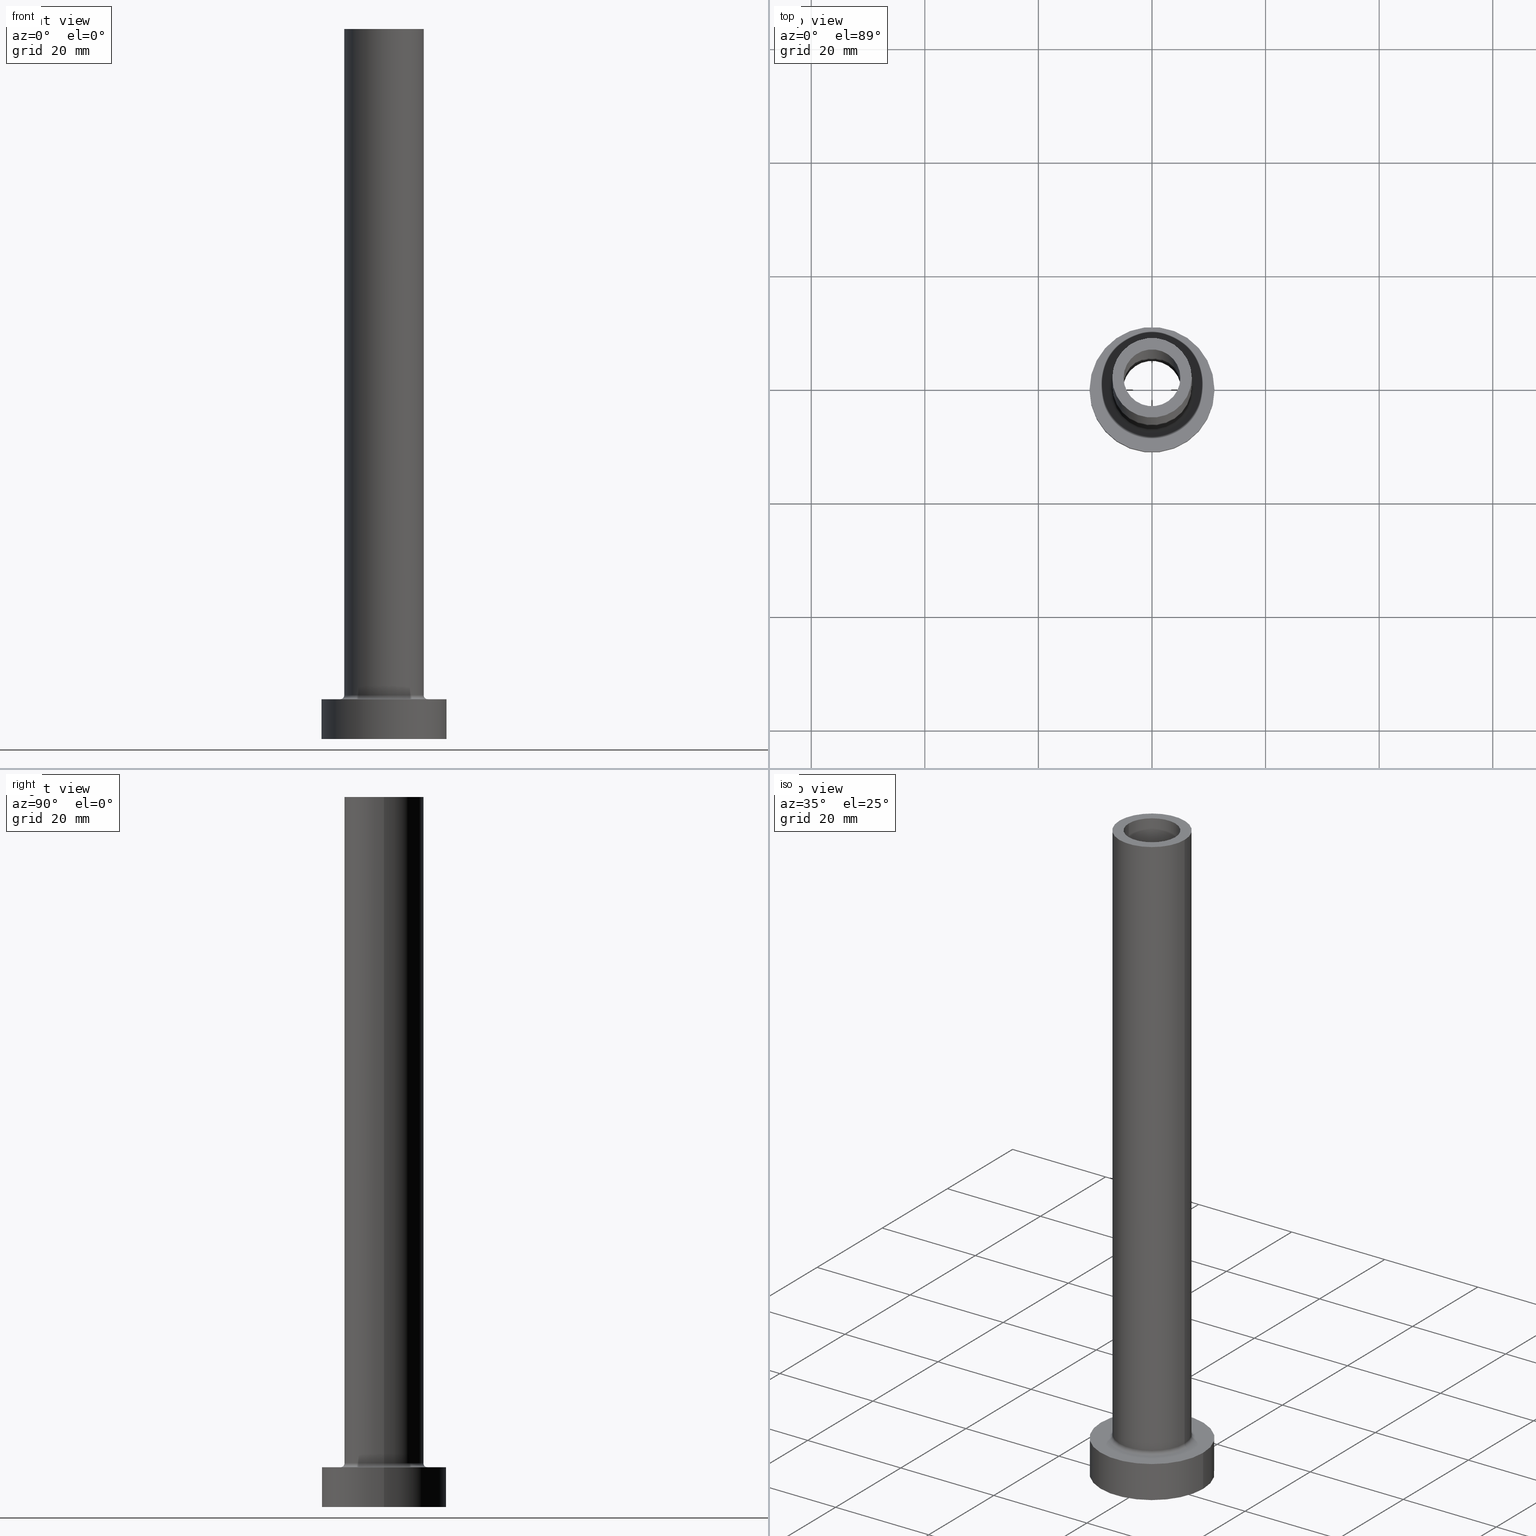
[diagram: canonical four-view strip — front | top / right | iso, engineering-drawing reading convention]
A machine part, canonical four-view strip (front | top / right | iso — engineering-drawing reading convention). The complete STEP part file that produces these views, byte-faithful:
ISO-10303-21;
HEADER;
FILE_DESCRIPTION (( 'STEP AP203' ),
    '1' );
FILE_NAME ('a6f4.STEP',
    '2023-02-13T07:44:35',
    ( '' ),
    ( '' ),
    'SwSTEP 2.0',
    'SolidWorks 2019',
    '' );
FILE_SCHEMA (( 'CONFIG_CONTROL_DESIGN' ));
ENDSEC;

DATA;
#1 = EDGE_LOOP ( 'NONE', ( #440, #361, #69, #321 ) ) ;
#2 = CYLINDRICAL_SURFACE ( 'NONE', #157, 11.00000000000000000 ) ;
#3 = ORIENTED_EDGE ( 'NONE', *, *, #61, .T. ) ;
#4 = AXIS2_PLACEMENT_3D ( 'NONE', #166, #136, #243 ) ;
#5 = DIRECTION ( 'NONE',  ( -0.000000000000000000, -0.000000000000000000, -1.000000000000000000 ) ) ;
#6 = ORIENTED_EDGE ( 'NONE', *, *, #452, .T. ) ;
#7 = VERTEX_POINT ( 'NONE', #266 ) ;
#8 = FACE_OUTER_BOUND ( 'NONE', #249, .T. ) ;
#9 = EDGE_CURVE ( 'NONE', #386, #119, #46, .T. ) ;
#10 = AXIS2_PLACEMENT_3D ( 'NONE', #129, #20, #204 ) ;
#11 = AXIS2_PLACEMENT_3D ( 'NONE', #377, #21, #315 ) ;
#12 = DIRECTION ( 'NONE',  ( 0.000000000000000000, 0.000000000000000000, 1.000000000000000000 ) ) ;
#13 = APPLICATION_CONTEXT ( 'configuration controlled 3d designs of mechanical parts and assemblies' ) ;
#14 = ORIENTED_EDGE ( 'NONE', *, *, #53, .F. ) ;
#15 = VECTOR ( 'NONE', #139, 1000.000000000000000 ) ;
#16 = ORIENTED_EDGE ( 'NONE', *, *, #308, .F. ) ;
#17 = DIRECTION ( 'NONE',  ( 1.000000000000000000, 0.000000000000000000, -0.000000000000000000 ) ) ;
#18 = ORIENTED_EDGE ( 'NONE', *, *, #325, .F. ) ;
#19 = SHAPE_DEFINITION_REPRESENTATION ( #90, #424 ) ;
#20 = DIRECTION ( 'NONE',  ( 0.000000000000000000, 0.000000000000000000, 1.000000000000000000 ) ) ;
#21 = DIRECTION ( 'NONE',  ( 0.000000000000000000, 0.000000000000000000, -1.000000000000000000 ) ) ;
#22 = LOCAL_TIME ( 8, 44, 35.00000000000000000, #268 ) ;
#23 = DATE_TIME_ROLE ( 'classification_date' ) ;
#24 = ADVANCED_FACE ( 'NONE', ( #410 ), #59, .F. ) ;
#25 = CARTESIAN_POINT ( 'NONE',  ( 11.00000000000000000, 1.347111479062088405E-15, 7.000000000000000000 ) ) ;
#26 = DATE_AND_TIME ( #234, #83 ) ;
#27 = CARTESIAN_POINT ( 'NONE',  ( 11.00000000000000000, 1.347111479062088405E-15, 0.000000000000000000 ) ) ;
#28 = CIRCLE ( 'NONE', #233, 5.150000000000001243 ) ;
#29 = CC_DESIGN_APPROVAL ( #169, ( #299 ) ) ;
#30 = CARTESIAN_POINT ( 'NONE',  ( 0.000000000000000000, 0.000000000000000000, 7.000000000000000000 ) ) ;
#31 = DIRECTION ( 'NONE',  ( 1.000000000000000000, 0.000000000000000000, 0.000000000000000000 ) ) ;
#32 = LOCAL_TIME ( 8, 44, 35.00000000000000000, #345 ) ;
#33 = DIRECTION ( 'NONE',  ( -0.000000000000000000, -0.000000000000000000, -1.000000000000000000 ) ) ;
#34 = FACE_OUTER_BOUND ( 'NONE', #199, .T. ) ;
#35 = AXIS2_PLACEMENT_3D ( 'NONE', #427, #436, #84 ) ;
#36 = AXIS2_PLACEMENT_3D ( 'NONE', #461, #458, #281 ) ;
#37 = PLANE ( 'NONE',  #331 ) ;
#38 = ORIENTED_EDGE ( 'NONE', *, *, #273, .F. ) ;
#39 = CC_DESIGN_PERSON_AND_ORGANIZATION_ASSIGNMENT ( #264, #62, ( #205 ) ) ;
#40 = DIRECTION ( 'NONE',  ( -1.000000000000000000, 0.000000000000000000, 0.000000000000000000 ) ) ;
#41 = ORIENTED_EDGE ( 'NONE', *, *, #452, .F. ) ;
#42 = DIRECTION ( 'NONE',  ( -1.000000000000000000, 0.000000000000000000, 0.000000000000000000 ) ) ;
#43 = EDGE_LOOP ( 'NONE', ( #433, #113, #143, #196 ) ) ;
#44 = CIRCLE ( 'NONE', #97, 11.00000000000000000 ) ;
#45 = CARTESIAN_POINT ( 'NONE',  ( 0.000000000000000000, 0.000000000000000000, 7.699999999999998401 ) ) ;
#46 = CIRCLE ( 'NONE', #194, 5.150000000000001243 ) ;
#47 = PERSON_AND_ORGANIZATION_ROLE ( 'design_owner' ) ;
#48 = DIRECTION ( 'NONE',  ( -0.000000000000000000, -0.000000000000000000, -1.000000000000000000 ) ) ;
#49 = ORIENTED_EDGE ( 'NONE', *, *, #366, .T. ) ;
#50 =( GEOMETRIC_REPRESENTATION_CONTEXT ( 3 ) GLOBAL_UNCERTAINTY_ASSIGNED_CONTEXT ( ( #100 ) ) GLOBAL_UNIT_ASSIGNED_CONTEXT ( ( #160, #333, #263 ) ) REPRESENTATION_CONTEXT ( 'NONE', 'WORKASPACE' ) );
#51 = DIRECTION ( 'NONE',  ( 1.000000000000000000, 0.000000000000000000, 0.000000000000000000 ) ) ;
#52 = CARTESIAN_POINT ( 'NONE',  ( 0.000000000000000000, 0.000000000000000000, 0.000000000000000000 ) ) ;
#53 = EDGE_CURVE ( 'NONE', #311, #217, #159, .T. ) ;
#54 = EDGE_LOOP ( 'NONE', ( #127, #398 ) ) ;
#55 = DIRECTION ( 'NONE',  ( 0.000000000000000000, 0.000000000000000000, -1.000000000000000000 ) ) ;
#56 = VERTEX_POINT ( 'NONE', #456 ) ;
#57 = APPROVAL_ROLE ( '' ) ;
#58 = ORIENTED_EDGE ( 'NONE', *, *, #389, .T. ) ;
#59 = CYLINDRICAL_SURFACE ( 'NONE', #11, 5.150000000000001243 ) ;
#60 = DATE_AND_TIME ( #372, #161 ) ;
#61 = EDGE_CURVE ( 'NONE', #352, #386, #347, .T. ) ;
#62 = PERSON_AND_ORGANIZATION_ROLE ( 'design_supplier' ) ;
#63 = CARTESIAN_POINT ( 'NONE',  ( 5.150000000000001243, 6.306931015608869596E-16, 94.56639969244288579 ) ) ;
#64 = DIRECTION ( 'NONE',  ( 0.000000000000000000, 0.000000000000000000, 1.000000000000000000 ) ) ;
#65 = CALENDAR_DATE ( 2023, 13, 2 ) ;
#66 = DIRECTION ( 'NONE',  ( 1.000000000000000000, 0.000000000000000000, 0.000000000000000000 ) ) ;
#67 = DIRECTION ( 'NONE',  ( 1.000000000000000000, 0.000000000000000000, 0.000000000000000000 ) ) ;
#68 = AXIS2_PLACEMENT_3D ( 'NONE', #376, #408, #302 ) ;
#69 = ORIENTED_EDGE ( 'NONE', *, *, #94, .F. ) ;
#70 = CIRCLE ( 'NONE', #223, 7.000000000000000888 ) ;
#71 = EDGE_CURVE ( 'NONE', #155, #230, #201, .T. ) ;
#72 = ORIENTED_EDGE ( 'NONE', *, *, #253, .T. ) ;
#73 = DIRECTION ( 'NONE',  ( 0.000000000000000000, 0.000000000000000000, 1.000000000000000000 ) ) ;
#74 = FACE_OUTER_BOUND ( 'NONE', #43, .T. ) ;
#75 = EDGE_CURVE ( 'NONE', #218, #81, #215, .T. ) ;
#76 = DIRECTION ( 'NONE',  ( 1.000000000000000000, 0.000000000000000000, -0.000000000000000000 ) ) ;
#77 = DIRECTION ( 'NONE',  ( 0.000000000000000000, 0.000000000000000000, 1.000000000000000000 ) ) ;
#78 = MECHANICAL_CONTEXT ( 'NONE', #13, 'mechanical' ) ;
#79 = CARTESIAN_POINT ( 'NONE',  ( -11.00000000000000000, 0.000000000000000000, 7.000000000000000000 ) ) ;
#80 = EDGE_CURVE ( 'NONE', #286, #359, #70, .T. ) ;
#81 = VERTEX_POINT ( 'NONE', #207 ) ;
#82 = DIRECTION ( 'NONE',  ( 1.000000000000000000, 0.000000000000000000, 0.000000000000000000 ) ) ;
#83 = LOCAL_TIME ( 8, 44, 35.00000000000000000, #346 ) ;
#84 = DIRECTION ( 'NONE',  ( 1.000000000000000000, 0.000000000000000000, -0.000000000000000000 ) ) ;
#85 = CARTESIAN_POINT ( 'NONE',  ( 0.000000000000000000, 0.000000000000000000, 7.000000000000000000 ) ) ;
#86 = AXIS2_PLACEMENT_3D ( 'NONE', #356, #145, #393 ) ;
#87 = CIRCLE ( 'NONE', #36, 5.150000000000001243 ) ;
#88 = PERSON_AND_ORGANIZATION ( #301, #313 ) ;
#89 = ORIENTED_EDGE ( 'NONE', *, *, #435, .T. ) ;
#90 = PRODUCT_DEFINITION_SHAPE ( 'NONE', 'NONE',  #299 ) ;
#91 = PLANE ( 'NONE',  #362 ) ;
#92 = PERSON_AND_ORGANIZATION_ROLE ( 'creator' ) ;
#93 = DIRECTION ( 'NONE',  ( 1.000000000000000000, 0.000000000000000000, 0.000000000000000000 ) ) ;
#94 = EDGE_CURVE ( 'NONE', #56, #407, #182, .T. ) ;
#95 = AXIS2_PLACEMENT_3D ( 'NONE', #85, #335, #439 ) ;
#96 = CALENDAR_DATE ( 2023, 13, 2 ) ;
#97 = AXIS2_PLACEMENT_3D ( 'NONE', #214, #73, #148 ) ;
#98 = ORIENTED_EDGE ( 'NONE', *, *, #334, .F. ) ;
#99 = LINE ( 'NONE', #403, #295 ) ;
#100 = UNCERTAINTY_MEASURE_WITH_UNIT (LENGTH_MEASURE( 1.000000000000000082E-05 ), #160, 'distance_accuracy_value', 'NONE');
#101 = APPROVAL_DATE_TIME ( #26, #257 ) ;
#102 = LINE ( 'NONE', #211, #186 ) ;
#103 = DIRECTION ( 'NONE',  ( 1.000000000000000000, 0.000000000000000000, 0.000000000000000000 ) ) ;
#104 = CARTESIAN_POINT ( 'NONE',  ( 5.000000000000000000, 6.123233995736765296E-16, 125.0000000000000000 ) ) ;
#105 = ORIENTED_EDGE ( 'NONE', *, *, #334, .T. ) ;
#106 = FACE_OUTER_BOUND ( 'NONE', #1, .T. ) ;
#107 = CIRCLE ( 'NONE', #68, 11.00000000000000000 ) ;
#108 = ORIENTED_EDGE ( 'NONE', *, *, #53, .T. ) ;
#109 = FACE_OUTER_BOUND ( 'NONE', #459, .T. ) ;
#110 = CARTESIAN_POINT ( 'NONE',  ( 0.000000000000000000, 0.000000000000000000, 80.00000000000000000 ) ) ;
#111 = CARTESIAN_POINT ( 'NONE',  ( 0.000000000000000000, 0.000000000000000000, 125.0000000000000000 ) ) ;
#112 = ADVANCED_FACE ( 'NONE', ( #174 ), #244, .F. ) ;
#113 = ORIENTED_EDGE ( 'NONE', *, *, #354, .F. ) ;
#114 = AXIS2_PLACEMENT_3D ( 'NONE', #360, #358, #423 ) ;
#115 = APPROVAL_PERSON_ORGANIZATION ( #239, #169, #57 ) ;
#116 = VECTOR ( 'NONE', #131, 1000.000000000000000 ) ;
#117 = DIRECTION ( 'NONE',  ( 0.000000000000000000, 0.000000000000000000, 1.000000000000000000 ) ) ;
#118 = EDGE_LOOP ( 'NONE', ( #421, #397, #49, #278 ) ) ;
#119 = VERTEX_POINT ( 'NONE', #404 ) ;
#120 = APPROVAL ( #378, 'NEUR�EN�' ) ;
#121 = CARTESIAN_POINT ( 'NONE',  ( 0.000000000000000000, 0.000000000000000000, 0.000000000000000000 ) ) ;
#122 = DIRECTION ( 'NONE',  ( 1.000000000000000000, 0.000000000000000000, 0.000000000000000000 ) ) ;
#123 = CARTESIAN_POINT ( 'NONE',  ( 0.000000000000000000, 0.000000000000000000, 7.699999999999998401 ) ) ;
#124 = EDGE_LOOP ( 'NONE', ( #98, #213, #221, #89 ) ) ;
#125 = EDGE_CURVE ( 'NONE', #7, #425, #402, .T. ) ;
#126 = PRODUCT ( 'a6f4', 'a6f4', '', ( #78 ) ) ;
#127 = ORIENTED_EDGE ( 'NONE', *, *, #94, .T. ) ;
#128 = AXIS2_PLACEMENT_3D ( 'NONE', #226, #438, #42 ) ;
#129 = CARTESIAN_POINT ( 'NONE',  ( 0.000000000000000000, 0.000000000000000000, 80.00000000000000000 ) ) ;
#130 = CLOSED_SHELL ( 'NONE', ( #430, #24, #112, #445, #220, #405, #190, #342, #185, #237, #261, #245, #399, #396 ) ) ;
#131 = DIRECTION ( 'NONE',  ( 0.000000000000000000, 0.000000000000000000, -1.000000000000000000 ) ) ;
#132 = AXIS2_PLACEMENT_3D ( 'NONE', #248, #380, #66 ) ;
#133 = EDGE_LOOP ( 'NONE', ( #168, #146, #324, #38 ) ) ;
#134 = SECURITY_CLASSIFICATION_LEVEL ( 'unclassified' ) ;
#135 = DATE_TIME_ROLE ( 'creation_date' ) ;
#136 = DIRECTION ( 'NONE',  ( 0.000000000000000000, 0.000000000000000000, 1.000000000000000000 ) ) ;
#137 = DATE_AND_TIME ( #96, #32 ) ;
#138 = CIRCLE ( 'NONE', #4, 5.000000000000000000 ) ;
#139 = DIRECTION ( 'NONE',  ( 0.000000000000000000, 0.000000000000000000, -1.000000000000000000 ) ) ;
#140 = CARTESIAN_POINT ( 'NONE',  ( -5.150000000000001243, 0.000000000000000000, 94.56639969244288579 ) ) ;
#141 = FACE_BOUND ( 'NONE', #383, .T. ) ;
#142 = DIRECTION ( 'NONE',  ( -0.000000000000000000, -0.000000000000000000, -1.000000000000000000 ) ) ;
#143 = ORIENTED_EDGE ( 'NONE', *, *, #75, .T. ) ;
#144 = CYLINDRICAL_SURFACE ( 'NONE', #336, 5.000000000000000000 ) ;
#145 = DIRECTION ( 'NONE',  ( 0.000000000000000000, 0.000000000000000000, 1.000000000000000000 ) ) ;
#146 = ORIENTED_EDGE ( 'NONE', *, *, #125, .T. ) ;
#147 = EDGE_CURVE ( 'NONE', #359, #286, #446, .T. ) ;
#148 = DIRECTION ( 'NONE',  ( 1.000000000000000000, 0.000000000000000000, 0.000000000000000000 ) ) ;
#149 = ORIENTED_EDGE ( 'NONE', *, *, #267, .F. ) ;
#150 = DIRECTION ( 'NONE',  ( 1.000000000000000000, 0.000000000000000000, 0.000000000000000000 ) ) ;
#151 = ORIENTED_EDGE ( 'NONE', *, *, #308, .T. ) ;
#152 = VECTOR ( 'NONE', #269, 1000.000000000000000 ) ;
#153 = DIRECTION ( 'NONE',  ( -1.000000000000000000, 0.000000000000000000, 0.000000000000000000 ) ) ;
#154 = CARTESIAN_POINT ( 'NONE',  ( 0.000000000000000000, 0.000000000000000000, 7.000000000000000000 ) ) ;
#155 = VERTEX_POINT ( 'NONE', #282 ) ;
#156 = EDGE_CURVE ( 'NONE', #217, #175, #310, .T. ) ;
#157 = AXIS2_PLACEMENT_3D ( 'NONE', #30, #357, #419 ) ;
#158 = EDGE_CURVE ( 'NONE', #81, #230, #322, .T. ) ;
#159 = CIRCLE ( 'NONE', #455, 0.7000000000000000666 ) ;
#160 =( LENGTH_UNIT ( ) NAMED_UNIT ( * ) SI_UNIT ( .MILLI., .METRE. ) );
#161 = LOCAL_TIME ( 8, 44, 35.00000000000000000, #164 ) ;
#162 = EDGE_LOOP ( 'NONE', ( #353, #171, #3, #375 ) ) ;
#163 = ORIENTED_EDGE ( 'NONE', *, *, #80, .F. ) ;
#164 = COORDINATED_UNIVERSAL_TIME_OFFSET ( 1, 0, .AHEAD. ) ;
#165 = EDGE_LOOP ( 'NONE', ( #332, #255 ) ) ;
#166 = CARTESIAN_POINT ( 'NONE',  ( 0.000000000000000000, 0.000000000000000000, 125.0000000000000000 ) ) ;
#167 = CARTESIAN_POINT ( 'NONE',  ( -7.700000000000001066, 9.429780353434621002E-16, 7.699999999999998401 ) ) ;
#168 = ORIENTED_EDGE ( 'NONE', *, *, #337, .F. ) ;
#169 = APPROVAL ( #304, 'NEUR�EN�' ) ;
#170 = CARTESIAN_POINT ( 'NONE',  ( 0.000000000000000000, 0.000000000000000000, 0.000000000000000000 ) ) ;
#171 = ORIENTED_EDGE ( 'NONE', *, *, #225, .T. ) ;
#172 = PERSON_AND_ORGANIZATION ( #301, #313 ) ;
#173 = DIRECTION ( 'NONE',  ( 0.000000000000000000, 0.000000000000000000, 1.000000000000000000 ) ) ;
#174 = FACE_OUTER_BOUND ( 'NONE', #394, .T. ) ;
#175 = VERTEX_POINT ( 'NONE', #259 ) ;
#176 = AXIS2_PLACEMENT_3D ( 'NONE', #121, #258, #82 ) ;
#177 = PRODUCT_RELATED_PRODUCT_CATEGORY ( 'detail', '', ( #126 ) ) ;
#178 = CARTESIAN_POINT ( 'NONE',  ( 7.000000000000000888, 8.572527594031474176E-16, 7.699999999999998401 ) ) ;
#179 = ORIENTED_EDGE ( 'NONE', *, *, #158, .F. ) ;
#180 = EDGE_CURVE ( 'NONE', #395, #175, #227, .T. ) ;
#181 = PLANE ( 'NONE',  #35 ) ;
#182 = CIRCLE ( 'NONE', #437, 5.000000000000000000 ) ;
#183 = CC_DESIGN_APPROVAL ( #120, ( #205 ) ) ;
#184 = CARTESIAN_POINT ( 'NONE',  ( -5.150000000000001243, 0.000000000000000000, 0.000000000000000000 ) ) ;
#185 = ADVANCED_FACE ( 'NONE', ( #351 ), #328, .T. ) ;
#186 = VECTOR ( 'NONE', #279, 1000.000000000000000 ) ;
#187 = ORIENTED_EDGE ( 'NONE', *, *, #389, .F. ) ;
#188 = VECTOR ( 'NONE', #270, 1000.000000000000000 ) ;
#189 = APPROVAL_PERSON_ORGANIZATION ( #343, #257, #209 ) ;
#190 = ADVANCED_FACE ( 'NONE', ( #318, #34 ), #181, .T. ) ;
#191 = VERTEX_POINT ( 'NONE', #293 ) ;
#192 = APPLICATION_CONTEXT ( 'configuration controlled 3d designs of mechanical parts and assemblies' ) ;
#193 = CIRCLE ( 'NONE', #10, 5.000000000000000000 ) ;
#194 = AXIS2_PLACEMENT_3D ( 'NONE', #52, #195, #298 ) ;
#195 = DIRECTION ( 'NONE',  ( -0.000000000000000000, -0.000000000000000000, -1.000000000000000000 ) ) ;
#196 = ORIENTED_EDGE ( 'NONE', *, *, #158, .T. ) ;
#197 = DIRECTION ( 'NONE',  ( 0.000000000000000000, 0.000000000000000000, -1.000000000000000000 ) ) ;
#198 = APPROVAL_DATE_TIME ( #60, #120 ) ;
#199 = EDGE_LOOP ( 'NONE', ( #453, #292 ) ) ;
#200 = FACE_OUTER_BOUND ( 'NONE', #370, .T. ) ;
#201 = LINE ( 'NONE', #25, #228 ) ;
#202 = EDGE_CURVE ( 'NONE', #175, #217, #420, .T. ) ;
#203 = PERSON_AND_ORGANIZATION_ROLE ( 'creator' ) ;
#204 = DIRECTION ( 'NONE',  ( 1.000000000000000000, 0.000000000000000000, 0.000000000000000000 ) ) ;
#205 = PRODUCT_DEFINITION_FORMATION_WITH_SPECIFIED_SOURCE ( 'LIBOVOLN�', '', #126, .NOT_KNOWN. ) ;
#206 = DESIGN_CONTEXT ( 'detailed design', #192, 'design' ) ;
#207 = CARTESIAN_POINT ( 'NONE',  ( -11.00000000000000000, 0.000000000000000000, 0.000000000000000000 ) ) ;
#208 = EDGE_LOOP ( 'NONE', ( #411, #16 ) ) ;
#209 = APPROVAL_ROLE ( '' ) ;
#210 = CC_DESIGN_PERSON_AND_ORGANIZATION_ASSIGNMENT ( #447, #203, ( #205 ) ) ;
#211 = CARTESIAN_POINT ( 'NONE',  ( 7.000000000000000888, 8.572527594031474176E-16, 125.0000000000000000 ) ) ;
#212 = CARTESIAN_POINT ( 'NONE',  ( 0.000000000000000000, 0.000000000000000000, 125.0000000000000000 ) ) ;
#213 = ORIENTED_EDGE ( 'NONE', *, *, #147, .F. ) ;
#214 = CARTESIAN_POINT ( 'NONE',  ( 0.000000000000000000, 0.000000000000000000, 0.000000000000000000 ) ) ;
#215 = LINE ( 'NONE', #443, #188 ) ;
#216 = DIRECTION ( 'NONE',  ( 1.000000000000000000, 0.000000000000000000, 0.000000000000000000 ) ) ;
#217 = VERTEX_POINT ( 'NONE', #297 ) ;
#218 = VERTEX_POINT ( 'NONE', #79 ) ;
#219 = DIRECTION ( 'NONE',  ( 0.000000000000000000, 0.000000000000000000, 1.000000000000000000 ) ) ;
#220 = ADVANCED_FACE ( 'NONE', ( #431 ), #364, .T. ) ;
#221 = ORIENTED_EDGE ( 'NONE', *, *, #267, .T. ) ;
#222 = AXIS2_PLACEMENT_3D ( 'NONE', #291, #5, #153 ) ;
#223 = AXIS2_PLACEMENT_3D ( 'NONE', #280, #64, #306 ) ;
#224 = CARTESIAN_POINT ( 'NONE',  ( 5.000000000000000000, 6.123233995736765296E-16, 80.00000000000000000 ) ) ;
#225 = EDGE_CURVE ( 'NONE', #191, #352, #28, .T. ) ;
#226 = CARTESIAN_POINT ( 'NONE',  ( 0.000000000000000000, 0.000000000000000000, 125.0000000000000000 ) ) ;
#227 = CIRCLE ( 'NONE', #114, 0.7000000000000000666 ) ;
#228 = VECTOR ( 'NONE', #241, 1000.000000000000000 ) ;
#229 = EDGE_CURVE ( 'NONE', #155, #218, #107, .T. ) ;
#230 = VERTEX_POINT ( 'NONE', #27 ) ;
#231 = SECURITY_CLASSIFICATION ( '', '', #134 ) ;
#232 = CYLINDRICAL_SURFACE ( 'NONE', #128, 5.000000000000000000 ) ;
#233 = AXIS2_PLACEMENT_3D ( 'NONE', #338, #12, #451 ) ;
#234 = CALENDAR_DATE ( 2023, 13, 2 ) ;
#235 = AXIS2_PLACEMENT_3D ( 'NONE', #448, #277, #103 ) ;
#236 = APPROVAL_DATE_TIME ( #450, #169 ) ;
#237 = ADVANCED_FACE ( 'NONE', ( #141, #373 ), #91, .T. ) ;
#238 = FACE_BOUND ( 'NONE', #208, .T. ) ;
#239 = PERSON_AND_ORGANIZATION ( #301, #313 ) ;
#240 = CARTESIAN_POINT ( 'NONE',  ( 0.000000000000000000, 0.000000000000000000, 125.0000000000000000 ) ) ;
#241 = DIRECTION ( 'NONE',  ( -0.000000000000000000, -0.000000000000000000, -1.000000000000000000 ) ) ;
#242 = APPROVAL_STATUS ( 'not_yet_approved' ) ;
#243 = DIRECTION ( 'NONE',  ( 1.000000000000000000, 0.000000000000000000, 0.000000000000000000 ) ) ;
#244 = TOROIDAL_SURFACE ( 'NONE', #235, 7.700000000000001066, 0.6999999999999999556 ) ;
#245 = ADVANCED_FACE ( 'NONE', ( #271 ), #305, .F. ) ;
#246 = PERSON_AND_ORGANIZATION_ROLE ( 'classification_officer' ) ;
#247 = DIRECTION ( 'NONE',  ( -0.000000000000000000, -0.000000000000000000, -1.000000000000000000 ) ) ;
#248 = CARTESIAN_POINT ( 'NONE',  ( 0.000000000000000000, 0.000000000000000000, 125.0000000000000000 ) ) ;
#249 = EDGE_LOOP ( 'NONE', ( #163, #105, #6, #149 ) ) ;
#250 = AXIS2_PLACEMENT_3D ( 'NONE', #252, #387, #67 ) ;
#251 = AXIS2_PLACEMENT_3D ( 'NONE', #212, #117, #150 ) ;
#252 = CARTESIAN_POINT ( 'NONE',  ( 0.000000000000000000, 0.000000000000000000, 7.000000000000000000 ) ) ;
#253 = EDGE_CURVE ( 'NONE', #191, #119, #276, .T. ) ;
#254 = DIRECTION ( 'NONE',  ( 0.000000000000000000, 0.000000000000000000, 1.000000000000000000 ) ) ;
#255 = ORIENTED_EDGE ( 'NONE', *, *, #80, .T. ) ;
#256 = CARTESIAN_POINT ( 'NONE',  ( -5.150000000000001243, 0.000000000000000000, 80.00000000000000000 ) ) ;
#257 = APPROVAL ( #242, 'NEUR�EN�' ) ;
#258 = DIRECTION ( 'NONE',  ( 0.000000000000000000, 0.000000000000000000, 1.000000000000000000 ) ) ;
#259 = CARTESIAN_POINT ( 'NONE',  ( 7.700000000000001066, 0.000000000000000000, 6.999999999999999112 ) ) ;
#260 = ORIENTED_EDGE ( 'NONE', *, *, #366, .F. ) ;
#261 = ADVANCED_FACE ( 'NONE', ( #200 ), #289, .F. ) ;
#262 = DIRECTION ( 'NONE',  ( 0.000000000000000000, 0.000000000000000000, 1.000000000000000000 ) ) ;
#263 =( NAMED_UNIT ( * ) SI_UNIT ( $, .STERADIAN. ) SOLID_ANGLE_UNIT ( ) );
#264 = PERSON_AND_ORGANIZATION ( #301, #313 ) ;
#265 = AXIS2_PLACEMENT_3D ( 'NONE', #388, #142, #216 ) ;
#266 = CARTESIAN_POINT ( 'NONE',  ( 5.000000000000000000, 6.123233995736765296E-16, 125.0000000000000000 ) ) ;
#267 = EDGE_CURVE ( 'NONE', #359, #311, #99, .T. ) ;
#268 = COORDINATED_UNIVERSAL_TIME_OFFSET ( 1, 0, .AHEAD. ) ;
#269 = DIRECTION ( 'NONE',  ( 0.000000000000000000, 0.000000000000000000, -1.000000000000000000 ) ) ;
#270 = DIRECTION ( 'NONE',  ( -0.000000000000000000, -0.000000000000000000, -1.000000000000000000 ) ) ;
#271 = FACE_OUTER_BOUND ( 'NONE', #162, .T. ) ;
#272 = CALENDAR_DATE ( 2023, 13, 2 ) ;
#273 = EDGE_CURVE ( 'NONE', #407, #56, #193, .T. ) ;
#274 = CARTESIAN_POINT ( 'NONE',  ( 0.000000000000000000, 0.000000000000000000, 80.00000000000000000 ) ) ;
#275 = CIRCLE ( 'NONE', #392, 7.000000000000000888 ) ;
#276 = LINE ( 'NONE', #63, #15 ) ;
#277 = DIRECTION ( 'NONE',  ( 0.000000000000000000, 0.000000000000000000, 1.000000000000000000 ) ) ;
#278 = ORIENTED_EDGE ( 'NONE', *, *, #75, .F. ) ;
#279 = DIRECTION ( 'NONE',  ( -0.000000000000000000, -0.000000000000000000, -1.000000000000000000 ) ) ;
#280 = CARTESIAN_POINT ( 'NONE',  ( 0.000000000000000000, 0.000000000000000000, 125.0000000000000000 ) ) ;
#281 = DIRECTION ( 'NONE',  ( 1.000000000000000000, 0.000000000000000000, 0.000000000000000000 ) ) ;
#282 = CARTESIAN_POINT ( 'NONE',  ( 11.00000000000000000, 1.347111479062088405E-15, 7.000000000000000000 ) ) ;
#283 = ORIENTED_EDGE ( 'NONE', *, *, #125, .F. ) ;
#284 = AXIS2_PLACEMENT_3D ( 'NONE', #314, #197, #309 ) ;
#285 = FACE_OUTER_BOUND ( 'NONE', #400, .T. ) ;
#286 = VERTEX_POINT ( 'NONE', #371 ) ;
#287 = FACE_BOUND ( 'NONE', #54, .T. ) ;
#288 = CC_DESIGN_PERSON_AND_ORGANIZATION_ASSIGNMENT ( #365, #47, ( #126 ) ) ;
#289 = TOROIDAL_SURFACE ( 'NONE', #434, 7.700000000000001066, 0.6999999999999999556 ) ;
#290 = AXIS2_PLACEMENT_3D ( 'NONE', #170, #454, #339 ) ;
#291 = CARTESIAN_POINT ( 'NONE',  ( 0.000000000000000000, 0.000000000000000000, 125.0000000000000000 ) ) ;
#292 = ORIENTED_EDGE ( 'NONE', *, *, #229, .T. ) ;
#293 = CARTESIAN_POINT ( 'NONE',  ( 5.150000000000001243, 6.306931015608869596E-16, 80.00000000000000000 ) ) ;
#294 = DIRECTION ( 'NONE',  ( 1.000000000000000000, 0.000000000000000000, 0.000000000000000000 ) ) ;
#295 = VECTOR ( 'NONE', #247, 1000.000000000000000 ) ;
#296 = ORIENTED_EDGE ( 'NONE', *, *, #202, .F. ) ;
#297 = CARTESIAN_POINT ( 'NONE',  ( -7.700000000000001066, 9.429780353434621002E-16, 6.999999999999999112 ) ) ;
#298 = DIRECTION ( 'NONE',  ( 1.000000000000000000, 0.000000000000000000, 0.000000000000000000 ) ) ;
#299 = PRODUCT_DEFINITION ( 'NEZN�M�', '', #205, #206 ) ;
#300 = DATE_AND_TIME ( #65, #22 ) ;
#301 = PERSON ( 'NEUR�EN�', 'NEUR�EN�', 'NEUR�EN�', ('NEUR�EN�'), ('NEUR�EN�'), ('NEUR�EN�') ) ;
#302 = DIRECTION ( 'NONE',  ( 1.000000000000000000, 0.000000000000000000, 0.000000000000000000 ) ) ;
#303 = DIRECTION ( 'NONE',  ( 1.224646799147353207E-16, 1.000000000000000000, -0.000000000000000000 ) ) ;
#304 = APPROVAL_STATUS ( 'not_yet_approved' ) ;
#305 = CYLINDRICAL_SURFACE ( 'NONE', #284, 5.150000000000001243 ) ;
#306 = DIRECTION ( 'NONE',  ( 1.000000000000000000, 0.000000000000000000, 0.000000000000000000 ) ) ;
#307 = CC_DESIGN_APPROVAL ( #257, ( #231 ) ) ;
#308 = EDGE_CURVE ( 'NONE', #119, #386, #355, .T. ) ;
#309 = DIRECTION ( 'NONE',  ( -1.000000000000000000, 0.000000000000000000, 0.000000000000000000 ) ) ;
#310 = CIRCLE ( 'NONE', #265, 7.700000000000001066 ) ;
#311 = VERTEX_POINT ( 'NONE', #414 ) ;
#312 = APPROVAL_ROLE ( '' ) ;
#313 = ORGANIZATION ( 'NEUR�EN�', 'NEUR�EN�', '' ) ;
#314 = CARTESIAN_POINT ( 'NONE',  ( 0.000000000000000000, 0.000000000000000000, 94.56639969244288579 ) ) ;
#315 = DIRECTION ( 'NONE',  ( -1.000000000000000000, 0.000000000000000000, 0.000000000000000000 ) ) ;
#316 = CC_DESIGN_SECURITY_CLASSIFICATION ( #231, ( #205 ) ) ;
#317 = CARTESIAN_POINT ( 'NONE',  ( -5.000000000000000000, 0.000000000000000000, 125.0000000000000000 ) ) ;
#318 = FACE_BOUND ( 'NONE', #329, .T. ) ;
#319 = EDGE_CURVE ( 'NONE', #425, #56, #379, .T. ) ;
#320 = DIRECTION ( 'NONE',  ( 0.000000000000000000, 0.000000000000000000, -1.000000000000000000 ) ) ;
#321 = ORIENTED_EDGE ( 'NONE', *, *, #319, .F. ) ;
#322 = CIRCLE ( 'NONE', #86, 11.00000000000000000 ) ;
#323 = DIRECTION ( 'NONE',  ( 1.000000000000000000, 0.000000000000000000, -0.000000000000000000 ) ) ;
#324 = ORIENTED_EDGE ( 'NONE', *, *, #319, .T. ) ;
#325 = EDGE_CURVE ( 'NONE', #425, #7, #138, .T. ) ;
#326 = CARTESIAN_POINT ( 'NONE',  ( -7.000000000000000888, 0.000000000000000000, 125.0000000000000000 ) ) ;
#327 = ORIENTED_EDGE ( 'NONE', *, *, #225, .F. ) ;
#328 = CYLINDRICAL_SURFACE ( 'NONE', #367, 7.000000000000000888 ) ;
#329 = EDGE_LOOP ( 'NONE', ( #444, #391 ) ) ;
#330 = CYLINDRICAL_SURFACE ( 'NONE', #222, 7.000000000000000888 ) ;
#331 = AXIS2_PLACEMENT_3D ( 'NONE', #390, #219, #323 ) ;
#332 = ORIENTED_EDGE ( 'NONE', *, *, #147, .T. ) ;
#333 =( NAMED_UNIT ( * ) PLANE_ANGLE_UNIT ( ) SI_UNIT ( $, .RADIAN. ) );
#334 = EDGE_CURVE ( 'NONE', #286, #395, #102, .T. ) ;
#335 = DIRECTION ( 'NONE',  ( -0.000000000000000000, -0.000000000000000000, -1.000000000000000000 ) ) ;
#336 = AXIS2_PLACEMENT_3D ( 'NONE', #385, #320, #349 ) ;
#337 = EDGE_CURVE ( 'NONE', #7, #407, #416, .T. ) ;
#338 = CARTESIAN_POINT ( 'NONE',  ( 0.000000000000000000, 0.000000000000000000, 80.00000000000000000 ) ) ;
#339 = DIRECTION ( 'NONE',  ( 1.000000000000000000, 0.000000000000000000, 0.000000000000000000 ) ) ;
#340 = ORIENTED_EDGE ( 'NONE', *, *, #180, .T. ) ;
#341 = CARTESIAN_POINT ( 'NONE',  ( 0.000000000000000000, 0.000000000000000000, 7.699999999999998401 ) ) ;
#342 = ADVANCED_FACE ( 'NONE', ( #238, #109 ), #37, .F. ) ;
#343 = PERSON_AND_ORGANIZATION ( #301, #313 ) ;
#344 = ORIENTED_EDGE ( 'NONE', *, *, #180, .F. ) ;
#345 = COORDINATED_UNIVERSAL_TIME_OFFSET ( 1, 0, .AHEAD. ) ;
#346 = COORDINATED_UNIVERSAL_TIME_OFFSET ( 1, 0, .AHEAD. ) ;
#347 = LINE ( 'NONE', #140, #116 ) ;
#348 = AXIS2_PLACEMENT_3D ( 'NONE', #45, #77, #51 ) ;
#349 = DIRECTION ( 'NONE',  ( -1.000000000000000000, 0.000000000000000000, 0.000000000000000000 ) ) ;
#350 = APPROVAL_PERSON_ORGANIZATION ( #88, #120, #312 ) ;
#351 = FACE_OUTER_BOUND ( 'NONE', #124, .T. ) ;
#352 = VERTEX_POINT ( 'NONE', #256 ) ;
#353 = ORIENTED_EDGE ( 'NONE', *, *, #253, .F. ) ;
#354 = EDGE_CURVE ( 'NONE', #218, #155, #384, .T. ) ;
#355 = CIRCLE ( 'NONE', #290, 5.150000000000001243 ) ;
#356 = CARTESIAN_POINT ( 'NONE',  ( 0.000000000000000000, 0.000000000000000000, 0.000000000000000000 ) ) ;
#357 = DIRECTION ( 'NONE',  ( -0.000000000000000000, -0.000000000000000000, -1.000000000000000000 ) ) ;
#358 = DIRECTION ( 'NONE',  ( 0.000000000000000000, -1.000000000000000000, 0.000000000000000000 ) ) ;
#359 = VERTEX_POINT ( 'NONE', #326 ) ;
#360 = CARTESIAN_POINT ( 'NONE',  ( 7.700000000000001066, 0.000000000000000000, 7.699999999999998401 ) ) ;
#361 = ORIENTED_EDGE ( 'NONE', *, *, #337, .T. ) ;
#362 = AXIS2_PLACEMENT_3D ( 'NONE', #240, #173, #17 ) ;
#363 = CC_DESIGN_DATE_AND_TIME_ASSIGNMENT ( #137, #135, ( #299 ) ) ;
#364 = CYLINDRICAL_SURFACE ( 'NONE', #95, 11.00000000000000000 ) ;
#365 = PERSON_AND_ORGANIZATION ( #301, #313 ) ;
#366 = EDGE_CURVE ( 'NONE', #230, #81, #44, .T. ) ;
#367 = AXIS2_PLACEMENT_3D ( 'NONE', #111, #33, #40 ) ;
#368 = LOCAL_TIME ( 8, 44, 35.00000000000000000, #401 ) ;
#369 = APPLICATION_PROTOCOL_DEFINITION ( 'international standard', 'config_control_design', 1994, #192 ) ;
#370 = EDGE_LOOP ( 'NONE', ( #14, #41, #340, #418 ) ) ;
#371 = CARTESIAN_POINT ( 'NONE',  ( 7.000000000000000888, 8.572527594031474176E-16, 125.0000000000000000 ) ) ;
#372 = CALENDAR_DATE ( 2023, 13, 2 ) ;
#373 = FACE_OUTER_BOUND ( 'NONE', #165, .T. ) ;
#374 = CC_DESIGN_PERSON_AND_ORGANIZATION_ASSIGNMENT ( #412, #246, ( #231 ) ) ;
#375 = ORIENTED_EDGE ( 'NONE', *, *, #9, .T. ) ;
#376 = CARTESIAN_POINT ( 'NONE',  ( 0.000000000000000000, 0.000000000000000000, 7.000000000000000000 ) ) ;
#377 = CARTESIAN_POINT ( 'NONE',  ( 0.000000000000000000, 0.000000000000000000, 94.56639969244288579 ) ) ;
#378 = APPROVAL_STATUS ( 'not_yet_approved' ) ;
#379 = LINE ( 'NONE', #449, #152 ) ;
#380 = DIRECTION ( 'NONE',  ( 0.000000000000000000, 0.000000000000000000, 1.000000000000000000 ) ) ;
#381 = ORIENTED_EDGE ( 'NONE', *, *, #61, .F. ) ;
#382 = DIRECTION ( 'NONE',  ( -1.000000000000000000, 1.224646799147351975E-16, 0.000000000000000000 ) ) ;
#383 = EDGE_LOOP ( 'NONE', ( #18, #283 ) ) ;
#384 = CIRCLE ( 'NONE', #250, 11.00000000000000000 ) ;
#385 = CARTESIAN_POINT ( 'NONE',  ( 0.000000000000000000, 0.000000000000000000, 125.0000000000000000 ) ) ;
#386 = VERTEX_POINT ( 'NONE', #184 ) ;
#387 = DIRECTION ( 'NONE',  ( 0.000000000000000000, 0.000000000000000000, 1.000000000000000000 ) ) ;
#388 = CARTESIAN_POINT ( 'NONE',  ( 0.000000000000000000, 0.000000000000000000, 7.000000000000000000 ) ) ;
#389 = EDGE_CURVE ( 'NONE', #352, #191, #87, .T. ) ;
#390 = CARTESIAN_POINT ( 'NONE',  ( 0.000000000000000000, 0.000000000000000000, 0.000000000000000000 ) ) ;
#391 = ORIENTED_EDGE ( 'NONE', *, *, #156, .T. ) ;
#392 = AXIS2_PLACEMENT_3D ( 'NONE', #123, #262, #294 ) ;
#393 = DIRECTION ( 'NONE',  ( 1.000000000000000000, 0.000000000000000000, 0.000000000000000000 ) ) ;
#394 = EDGE_LOOP ( 'NONE', ( #441, #108, #296, #344 ) ) ;
#395 = VERTEX_POINT ( 'NONE', #178 ) ;
#396 = ADVANCED_FACE ( 'NONE', ( #426 ), #144, .F. ) ;
#397 = ORIENTED_EDGE ( 'NONE', *, *, #71, .T. ) ;
#398 = ORIENTED_EDGE ( 'NONE', *, *, #273, .T. ) ;
#399 = ADVANCED_FACE ( 'NONE', ( #287, #285 ), #422, .F. ) ;
#400 = EDGE_LOOP ( 'NONE', ( #187, #327 ) ) ;
#401 = COORDINATED_UNIVERSAL_TIME_OFFSET ( 1, 0, .AHEAD. ) ;
#402 = CIRCLE ( 'NONE', #132, 5.000000000000000000 ) ;
#403 = CARTESIAN_POINT ( 'NONE',  ( -7.000000000000000888, 0.000000000000000000, 125.0000000000000000 ) ) ;
#404 = CARTESIAN_POINT ( 'NONE',  ( 5.150000000000001243, 6.306931015608869596E-16, 0.000000000000000000 ) ) ;
#405 = ADVANCED_FACE ( 'NONE', ( #74 ), #2, .T. ) ;
#406 = DIRECTION ( 'NONE',  ( 0.000000000000000000, 0.000000000000000000, 1.000000000000000000 ) ) ;
#407 = VERTEX_POINT ( 'NONE', #224 ) ;
#408 = DIRECTION ( 'NONE',  ( 0.000000000000000000, 0.000000000000000000, 1.000000000000000000 ) ) ;
#409 = CIRCLE ( 'NONE', #348, 7.000000000000000888 ) ;
#410 = FACE_OUTER_BOUND ( 'NONE', #457, .T. ) ;
#411 = ORIENTED_EDGE ( 'NONE', *, *, #9, .F. ) ;
#412 = PERSON_AND_ORGANIZATION ( #301, #313 ) ;
#413 = MANIFOLD_SOLID_BREP ( 'Odebrat vysunut�m4', #130 ) ;
#414 = CARTESIAN_POINT ( 'NONE',  ( -7.000000000000000888, 0.000000000000000000, 7.699999999999998401 ) ) ;
#415 = CC_DESIGN_DATE_AND_TIME_ASSIGNMENT ( #300, #23, ( #231 ) ) ;
#416 = LINE ( 'NONE', #104, #442 ) ;
#417 = DIRECTION ( 'NONE',  ( 0.000000000000000000, 0.000000000000000000, 1.000000000000000000 ) ) ;
#418 = ORIENTED_EDGE ( 'NONE', *, *, #156, .F. ) ;
#419 = DIRECTION ( 'NONE',  ( -1.000000000000000000, 0.000000000000000000, 0.000000000000000000 ) ) ;
#420 = CIRCLE ( 'NONE', #428, 7.700000000000001066 ) ;
#421 = ORIENTED_EDGE ( 'NONE', *, *, #229, .F. ) ;
#422 = PLANE ( 'NONE',  #429 ) ;
#423 = DIRECTION ( 'NONE',  ( 0.000000000000000000, 0.000000000000000000, -1.000000000000000000 ) ) ;
#424 = ADVANCED_BREP_SHAPE_REPRESENTATION ( 'a6f4', ( #413, #176 ), #50 ) ;
#425 = VERTEX_POINT ( 'NONE', #317 ) ;
#426 = FACE_OUTER_BOUND ( 'NONE', #133, .T. ) ;
#427 = CARTESIAN_POINT ( 'NONE',  ( 0.000000000000000000, 0.000000000000000000, 7.000000000000000000 ) ) ;
#428 = AXIS2_PLACEMENT_3D ( 'NONE', #154, #48, #122 ) ;
#429 = AXIS2_PLACEMENT_3D ( 'NONE', #110, #254, #76 ) ;
#430 = ADVANCED_FACE ( 'NONE', ( #106 ), #232, .F. ) ;
#431 = FACE_OUTER_BOUND ( 'NONE', #118, .T. ) ;
#432 = APPLICATION_PROTOCOL_DEFINITION ( 'international standard', 'config_control_design', 1994, #13 ) ;
#433 = ORIENTED_EDGE ( 'NONE', *, *, #71, .F. ) ;
#434 = AXIS2_PLACEMENT_3D ( 'NONE', #341, #406, #93 ) ;
#435 = EDGE_CURVE ( 'NONE', #311, #395, #409, .T. ) ;
#436 = DIRECTION ( 'NONE',  ( 0.000000000000000000, 0.000000000000000000, 1.000000000000000000 ) ) ;
#437 = AXIS2_PLACEMENT_3D ( 'NONE', #274, #417, #31 ) ;
#438 = DIRECTION ( 'NONE',  ( 0.000000000000000000, 0.000000000000000000, -1.000000000000000000 ) ) ;
#439 = DIRECTION ( 'NONE',  ( -1.000000000000000000, 0.000000000000000000, 0.000000000000000000 ) ) ;
#440 = ORIENTED_EDGE ( 'NONE', *, *, #325, .T. ) ;
#441 = ORIENTED_EDGE ( 'NONE', *, *, #435, .F. ) ;
#442 = VECTOR ( 'NONE', #55, 1000.000000000000000 ) ;
#443 = CARTESIAN_POINT ( 'NONE',  ( -11.00000000000000000, 0.000000000000000000, 7.000000000000000000 ) ) ;
#444 = ORIENTED_EDGE ( 'NONE', *, *, #202, .T. ) ;
#445 = ADVANCED_FACE ( 'NONE', ( #8 ), #330, .T. ) ;
#446 = CIRCLE ( 'NONE', #251, 7.000000000000000888 ) ;
#447 = PERSON_AND_ORGANIZATION ( #301, #313 ) ;
#448 = CARTESIAN_POINT ( 'NONE',  ( 0.000000000000000000, 0.000000000000000000, 7.699999999999998401 ) ) ;
#449 = CARTESIAN_POINT ( 'NONE',  ( -5.000000000000000000, 0.000000000000000000, 125.0000000000000000 ) ) ;
#450 = DATE_AND_TIME ( #272, #368 ) ;
#451 = DIRECTION ( 'NONE',  ( 1.000000000000000000, 0.000000000000000000, 0.000000000000000000 ) ) ;
#452 = EDGE_CURVE ( 'NONE', #395, #311, #275, .T. ) ;
#453 = ORIENTED_EDGE ( 'NONE', *, *, #354, .T. ) ;
#454 = DIRECTION ( 'NONE',  ( -0.000000000000000000, -0.000000000000000000, -1.000000000000000000 ) ) ;
#455 = AXIS2_PLACEMENT_3D ( 'NONE', #167, #303, #382 ) ;
#456 = CARTESIAN_POINT ( 'NONE',  ( -5.000000000000000000, 0.000000000000000000, 80.00000000000000000 ) ) ;
#457 = EDGE_LOOP ( 'NONE', ( #58, #72, #151, #381 ) ) ;
#458 = DIRECTION ( 'NONE',  ( 0.000000000000000000, 0.000000000000000000, 1.000000000000000000 ) ) ;
#459 = EDGE_LOOP ( 'NONE', ( #179, #260 ) ) ;
#460 = CC_DESIGN_PERSON_AND_ORGANIZATION_ASSIGNMENT ( #172, #92, ( #299 ) ) ;
#461 = CARTESIAN_POINT ( 'NONE',  ( 0.000000000000000000, 0.000000000000000000, 80.00000000000000000 ) ) ;
ENDSEC;
END-ISO-10303-21;
